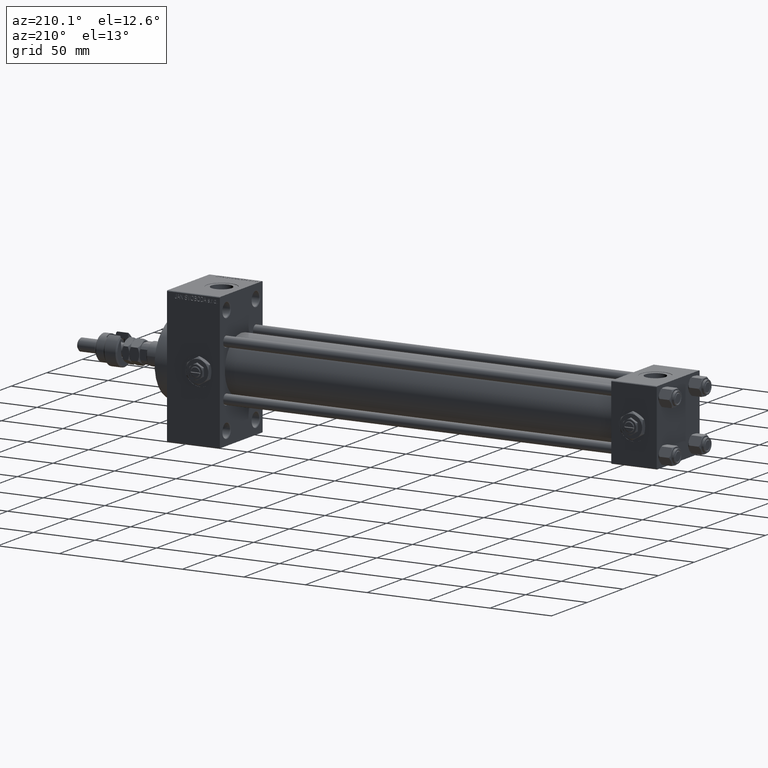
[diagram: clean part render]
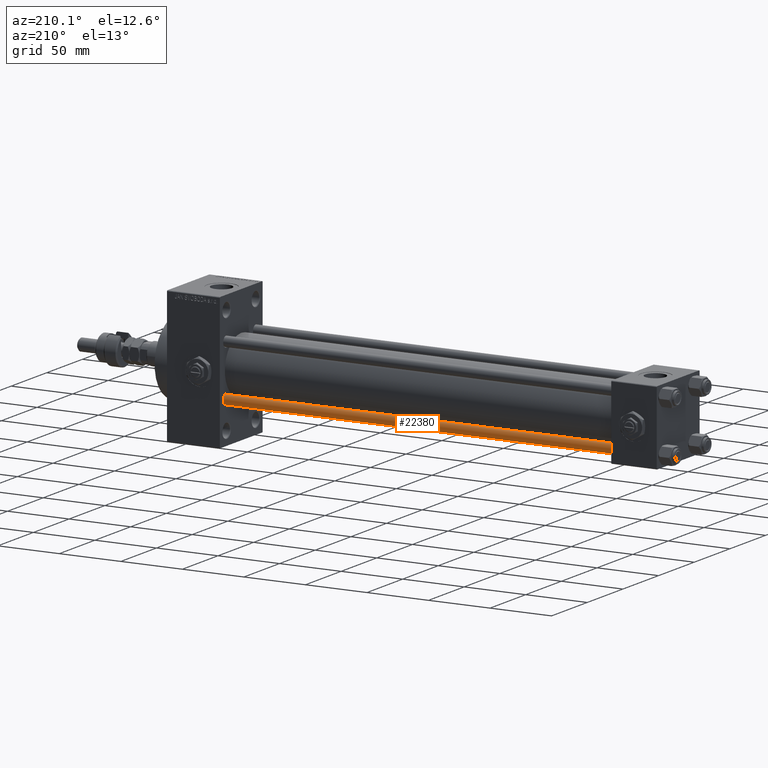
[diagram: same view with one face highlighted and labeled with its STEP entity id]
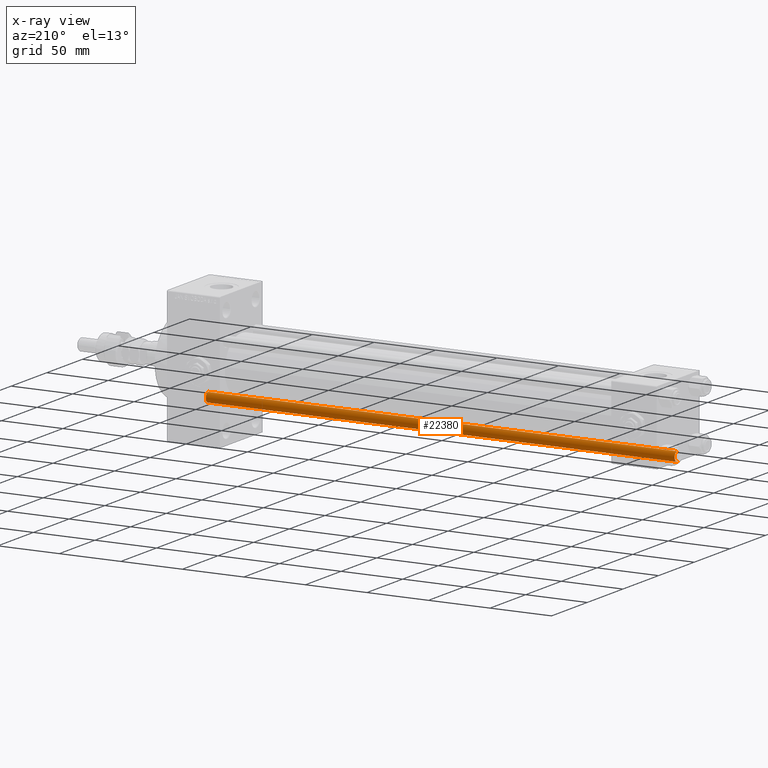
[diagram: x-ray of the same camera — body ghosted, the highlighted face saturated]
A machine part, auxiliary view. The second image highlights one B-rep face of the part: STEP entity #22380.
The next image is the same camera in x-ray: the body ghosted, the highlighted face saturated — about 0% of this face is hidden behind the body in this view.
In plain terms, the highlighted cylindrical surface (edge-blend (fillet) strip) has radius 4 mm, axis along (1, -0, 0).
Its self-contained STEP definition (entity closure, byte-faithful):
#661 = DIRECTION ( 'NONE',  ( -0.000000000000000000, -0.000000000000000000, -1.000000000000000000 ) ) ;
#3339 = CARTESIAN_POINT ( 'NONE',  ( 0.000000000000000000, 0.000000000000000000, 0.5000000000000559552 ) ) ;
#6131 = VERTEX_POINT ( 'NONE', #6582 ) ;
#6582 = CARTESIAN_POINT ( 'NONE',  ( 4.000000000000000000, 4.898587196589412829E-16, 0.5000000000000559552 ) ) ;
#7456 = CARTESIAN_POINT ( 'NONE',  ( -4.000000000000000000, 0.000000000000000000, 382.0000000000000000 ) ) ;
#7720 = DIRECTION ( 'NONE',  ( -0.000000000000000000, -0.000000000000000000, -1.000000000000000000 ) ) ;
#7806 = CYLINDRICAL_SURFACE ( 'NONE', #32900, 4.000000000000000000 ) ;
#7976 = CARTESIAN_POINT ( 'NONE',  ( 0.000000000000000000, 0.000000000000000000, 381.5000000000000568 ) ) ;
#8624 = EDGE_CURVE ( 'NONE', #24667, #34396, #41933, .T. ) ;
#8660 = ORIENTED_EDGE ( 'NONE', *, *, #20617, .F. ) ;
#11192 = CARTESIAN_POINT ( 'NONE',  ( -4.000000000000000000, 0.000000000000000000, 0.5000000000000559552 ) ) ;
#11925 = DIRECTION ( 'NONE',  ( 1.000000000000000000, 0.000000000000000000, 0.000000000000000000 ) ) ;
#12002 = CARTESIAN_POINT ( 'NONE',  ( 4.000000000000000000, 4.898587196589412829E-16, 382.0000000000000000 ) ) ;
#12012 = DIRECTION ( 'NONE',  ( -0.000000000000000000, -0.000000000000000000, -1.000000000000000000 ) ) ;
#15855 = EDGE_LOOP ( 'NONE', ( #22834, #17353, #51804, #8660 ) ) ;
#17353 = ORIENTED_EDGE ( 'NONE', *, *, #51442, .T. ) ;
#17682 = VECTOR ( 'NONE', #7720, 1000.000000000000000 ) ;
#20617 = EDGE_CURVE ( 'NONE', #24667, #36530, #27736, .T. ) ;
#22380 = ADVANCED_FACE ( 'NONE', ( #36784 ), #7806, .T. ) ;
#22587 = AXIS2_PLACEMENT_3D ( 'NONE', #7976, #31959, #11925 ) ;
#22834 = ORIENTED_EDGE ( 'NONE', *, *, #8624, .T. ) ;
#23389 = DIRECTION ( 'NONE',  ( 1.000000000000000000, 0.000000000000000000, 0.000000000000000000 ) ) ;
#24667 = VERTEX_POINT ( 'NONE', #35179 ) ;
#27736 = LINE ( 'NONE', #7456, #17682 ) ;
#28607 = CARTESIAN_POINT ( 'NONE',  ( 0.000000000000000000, 0.000000000000000000, 382.0000000000000000 ) ) ;
#29115 = CARTESIAN_POINT ( 'NONE',  ( 4.000000000000000000, 4.898587196589412829E-16, 381.5000000000000568 ) ) ;
#31959 = DIRECTION ( 'NONE',  ( 0.000000000000000000, 0.000000000000000000, -1.000000000000000000 ) ) ;
#32900 = AXIS2_PLACEMENT_3D ( 'NONE', #28607, #12012, #40461 ) ;
#34396 = VERTEX_POINT ( 'NONE', #29115 ) ;
#35179 = CARTESIAN_POINT ( 'NONE',  ( -4.000000000000000000, 0.000000000000000000, 381.5000000000000568 ) ) ;
#36530 = VERTEX_POINT ( 'NONE', #11192 ) ;
#36784 = FACE_OUTER_BOUND ( 'NONE', #15855, .T. ) ;
#40461 = DIRECTION ( 'NONE',  ( -1.000000000000000000, 0.000000000000000000, 0.000000000000000000 ) ) ;
#40873 = VECTOR ( 'NONE', #661, 1000.000000000000000 ) ;
#41598 = AXIS2_PLACEMENT_3D ( 'NONE', #3339, #43389, #23389 ) ;
#41933 = CIRCLE ( 'NONE', #22587, 4.000000000000000000 ) ;
#43389 = DIRECTION ( 'NONE',  ( -0.000000000000000000, -0.000000000000000000, 1.000000000000000000 ) ) ;
#44345 = EDGE_CURVE ( 'NONE', #6131, #36530, #45818, .T. ) ;
#45818 = CIRCLE ( 'NONE', #41598, 4.000000000000000000 ) ;
#48099 = LINE ( 'NONE', #12002, #40873 ) ;
#51442 = EDGE_CURVE ( 'NONE', #34396, #6131, #48099, .T. ) ;
#51804 = ORIENTED_EDGE ( 'NONE', *, *, #44345, .T. ) ;